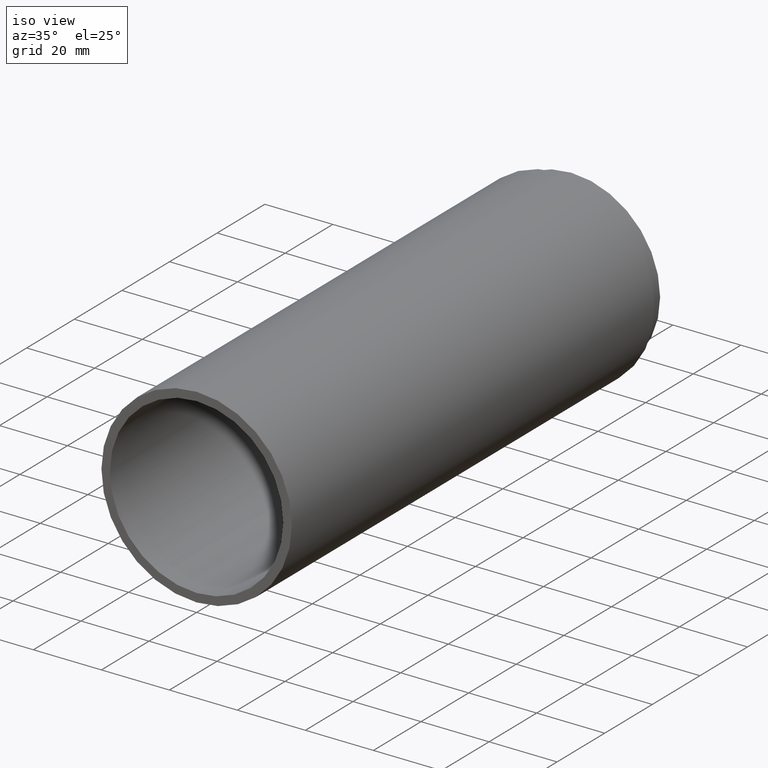
[diagram: clean part render]
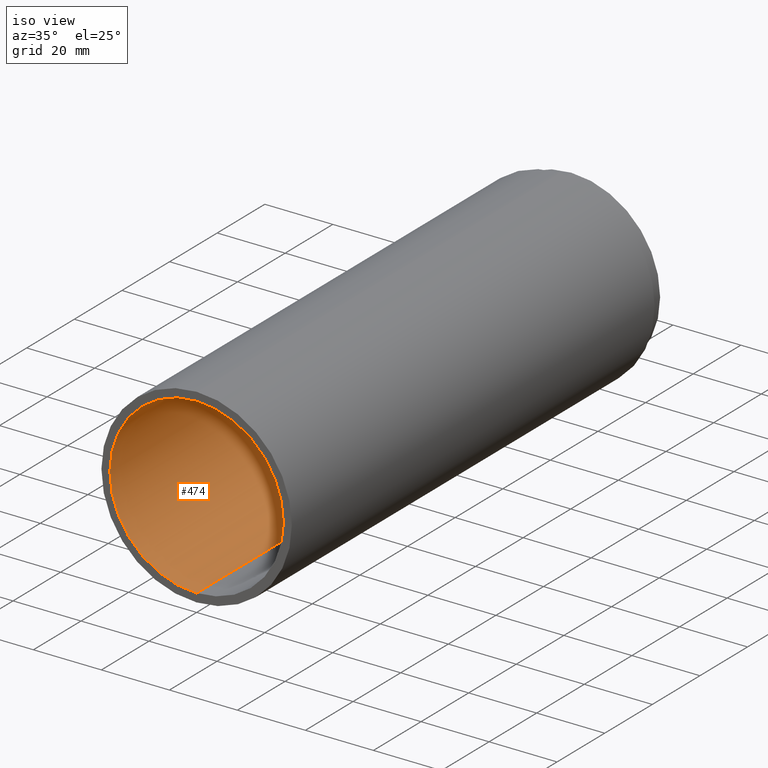
[diagram: same view with one face highlighted and labeled with its STEP entity id]
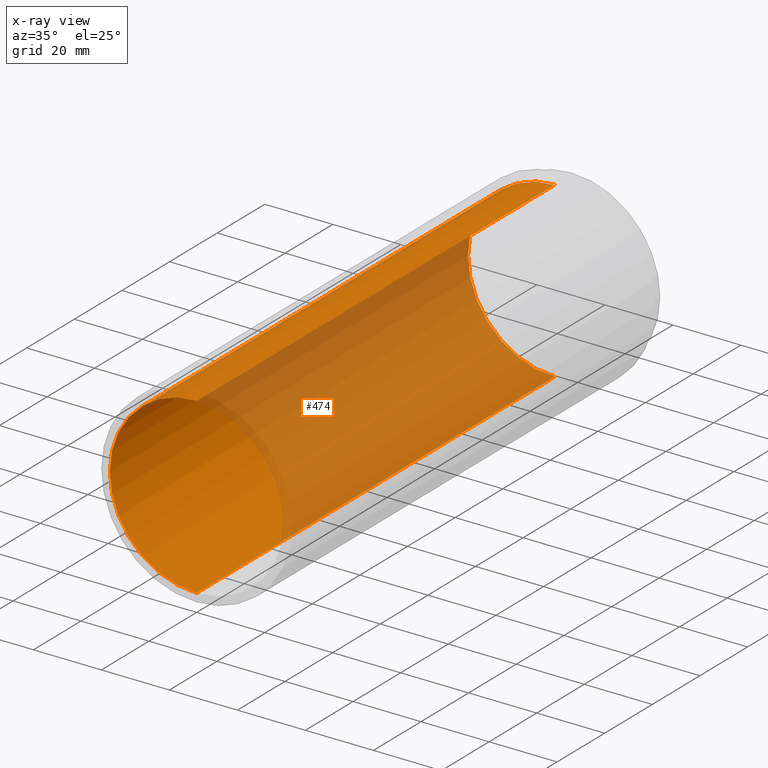
[diagram: x-ray of the same camera — body ghosted, the highlighted face saturated]
A machine part, iso view. The second image highlights one B-rep face of the part: STEP entity #474.
The next image is the same camera in x-ray: the body ghosted, the highlighted face saturated — about 57% of this face is hidden behind the body in this view.
In plain terms, the highlighted cylindrical surface (partial cylindrical patch) has radius 25.5 mm, axis along (-0, 1, -0).
Its self-contained STEP definition (entity closure, byte-faithful):
#13 = CARTESIAN_POINT ( 'NONE',  ( 0.0000000000000000000, -2.775557561562891400E-014, 25.50000000000001800 ) ) ;
#25 = DIRECTION ( 'NONE',  ( -0.0000000000000000000, 1.000000000000000000, -0.0000000000000000000 ) ) ;
#29 = CARTESIAN_POINT ( 'NONE',  ( 0.0000000000000000000, 150.3999999999999800, 25.50000000000001800 ) ) ;
#35 = CARTESIAN_POINT ( 'NONE',  ( 0.0000000000000000000, 161.3761669434274500, 25.50000000000001800 ) ) ;
#46 = EDGE_CURVE ( 'NONE', #157, #300, #389, .T. ) ;
#56 = AXIS2_PLACEMENT_3D ( 'NONE', #403, #164, #301 ) ;
#70 = CARTESIAN_POINT ( 'NONE',  ( 0.0000000000000000000, -2.775557561562891400E-014, 0.0000000000000000000 ) ) ;
#71 = CARTESIAN_POINT ( 'NONE',  ( 0.0000000000000000000, 161.3761669434274500, 0.0000000000000000000 ) ) ;
#94 = VERTEX_POINT ( 'NONE', #29 ) ;
#129 = CARTESIAN_POINT ( 'NONE',  ( 3.122849337825753000E-015, -2.775557561562891400E-014, -25.50000000000001800 ) ) ;
#137 = DIRECTION ( 'NONE',  ( -0.0000000000000000000, 1.000000000000000000, -0.0000000000000000000 ) ) ;
#146 = EDGE_CURVE ( 'NONE', #157, #180, #264, .T. ) ;
#157 = VERTEX_POINT ( 'NONE', #129 ) ;
#164 = DIRECTION ( 'NONE',  ( -0.0000000000000000000, 1.000000000000000000, -0.0000000000000000000 ) ) ;
#180 = VERTEX_POINT ( 'NONE', #239 ) ;
#204 = EDGE_CURVE ( 'NONE', #300, #94, #436, .T. ) ;
#230 = DIRECTION ( 'NONE',  ( 0.0000000000000000000, 0.0000000000000000000, 1.000000000000000000 ) ) ;
#239 = CARTESIAN_POINT ( 'NONE',  ( 3.122849337825753000E-015, 150.3999999999999800, -25.50000000000001800 ) ) ;
#264 = LINE ( 'NONE', #471, #286 ) ;
#279 = DIRECTION ( 'NONE',  ( -0.0000000000000000000, 1.000000000000000000, -0.0000000000000000000 ) ) ;
#286 = VECTOR ( 'NONE', #279, 1000.000000000000000 ) ;
#300 = VERTEX_POINT ( 'NONE', #13 ) ;
#301 = DIRECTION ( 'NONE',  ( 0.0000000000000000000, 0.0000000000000000000, 1.000000000000000000 ) ) ;
#317 = CYLINDRICAL_SURFACE ( 'NONE', #455, 25.50000000000001800 ) ;
#343 = EDGE_CURVE ( 'NONE', #180, #94, #515, .T. ) ;
#352 = FACE_OUTER_BOUND ( 'NONE', #534, .T. ) ;
#355 = ORIENTED_EDGE ( 'NONE', *, *, #343, .T. ) ;
#389 = CIRCLE ( 'NONE', #398, 25.50000000000001800 ) ;
#390 = ORIENTED_EDGE ( 'NONE', *, *, #146, .T. ) ;
#398 = AXIS2_PLACEMENT_3D ( 'NONE', #70, #25, #404 ) ;
#403 = CARTESIAN_POINT ( 'NONE',  ( 0.0000000000000000000, 150.3999999999999800, 0.0000000000000000000 ) ) ;
#404 = DIRECTION ( 'NONE',  ( 0.0000000000000000000, 0.0000000000000000000, 1.000000000000000000 ) ) ;
#436 = LINE ( 'NONE', #35, #516 ) ;
#455 = AXIS2_PLACEMENT_3D ( 'NONE', #71, #458, #230 ) ;
#458 = DIRECTION ( 'NONE',  ( -0.0000000000000000000, 1.000000000000000000, -0.0000000000000000000 ) ) ;
#471 = CARTESIAN_POINT ( 'NONE',  ( 3.122849337825753000E-015, 161.3761669434274500, -25.50000000000001800 ) ) ;
#474 = ADVANCED_FACE ( 'NONE', ( #352 ), #317, .F. ) ;
#479 = ORIENTED_EDGE ( 'NONE', *, *, #46, .F. ) ;
#515 = CIRCLE ( 'NONE', #56, 25.50000000000001800 ) ;
#516 = VECTOR ( 'NONE', #137, 1000.000000000000000 ) ;
#534 = EDGE_LOOP ( 'NONE', ( #479, #390, #355, #586 ) ) ;
#586 = ORIENTED_EDGE ( 'NONE', *, *, #204, .F. ) ;